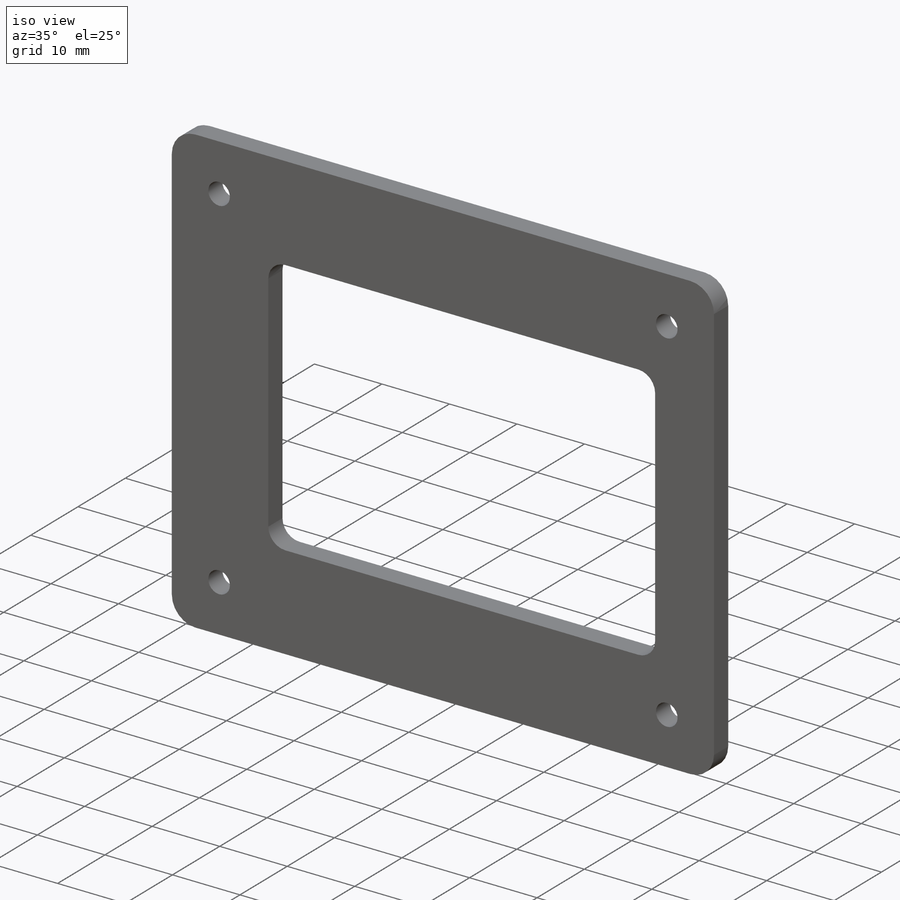
[diagram: iso view]
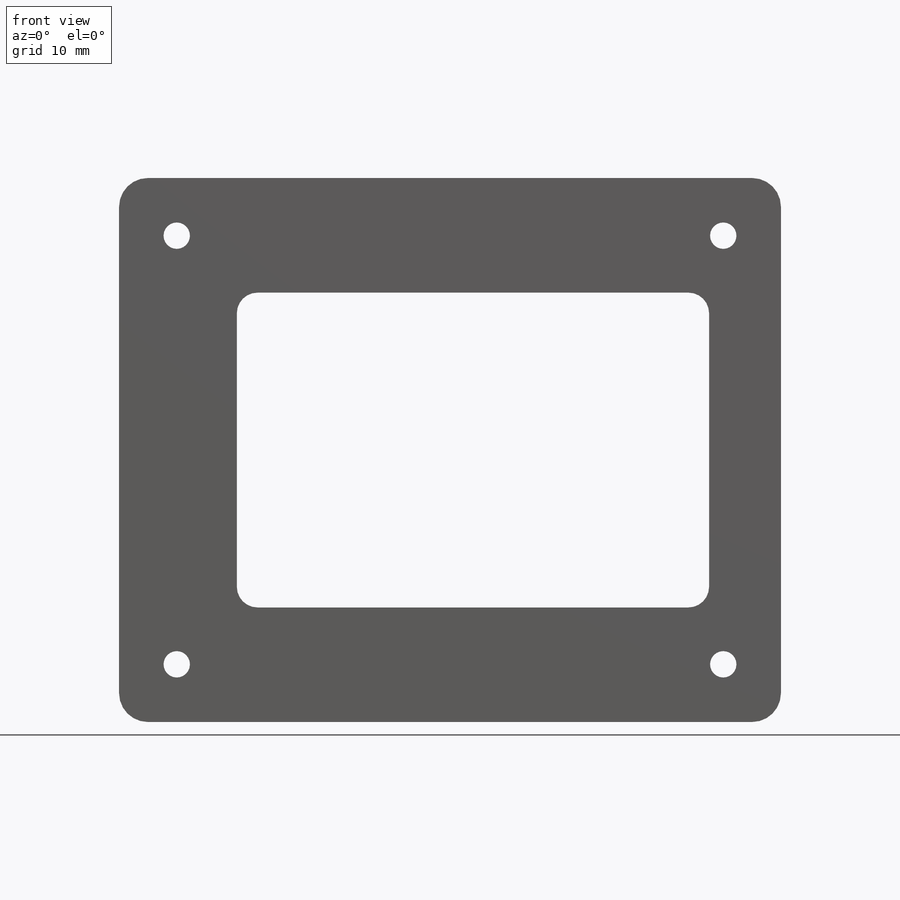
[diagram: front view]
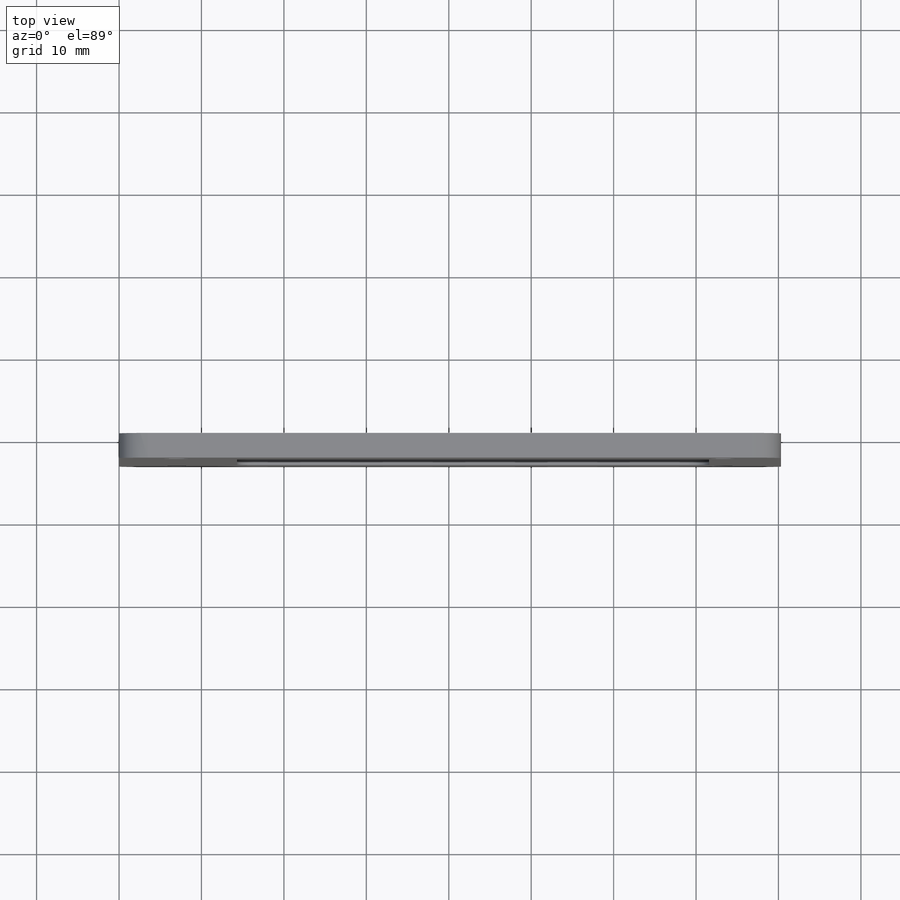
[diagram: top view]
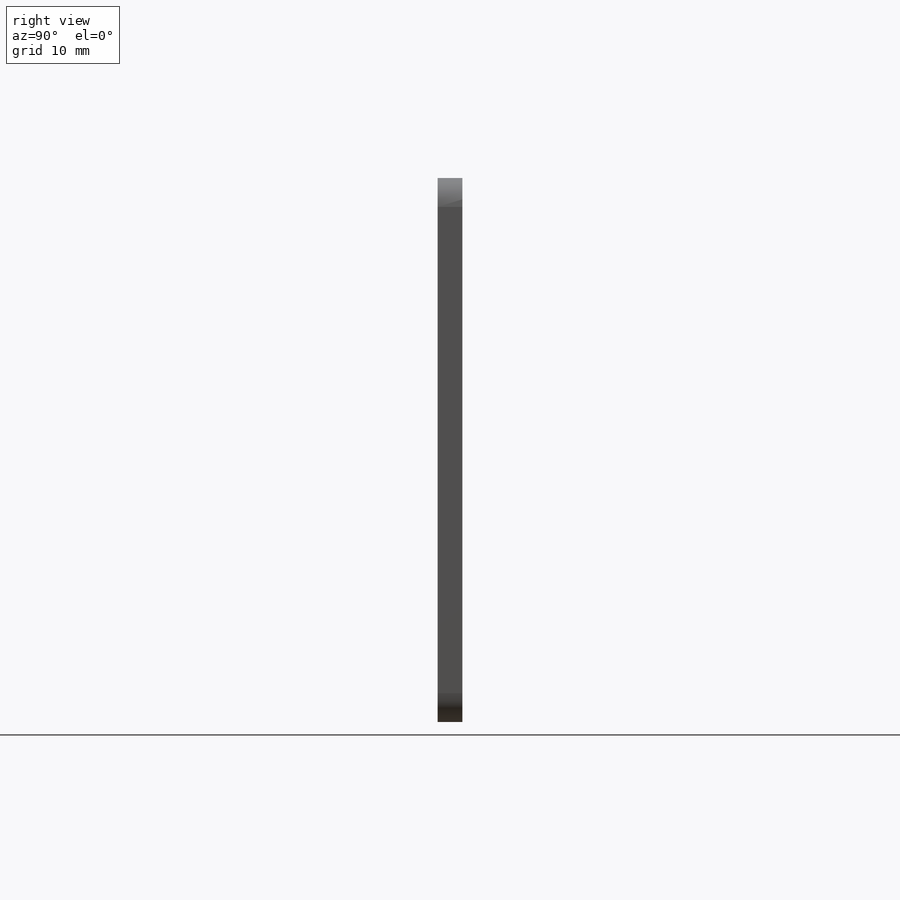
[diagram: right view]
SOLIDWORKS PART (.sldprt)
format: sldprt  version: not decoded by parser v0  size: 205,312 bytes
history: native  units: mm
features: sketch x4, fillet x2, material x1, extrude x1, hole x1, cut_extrude x1 (+12 scaffold rows collapsed)
feature tree (22):
  scaffold x12  (default folders/planes/origin — collapsed)
  material  "Acrylic (Medium-high impact)"
  sketch  "Sketch1"  dims[D1=80.3mm D2=66.0mm]
  extrude  "Boss-Extrude1"  Depth=3mm
  hole  "Ø3.2 (3.2) Diameter Hole1"  Diameter=3.2mm Depth=3mm
  sketch  "Sketch4"  dims[c1.D1=~65.796405mm c1.D2=~53.581039mm c1.D3=~65.796405mm c2.D1=7.0mm c2.D2=7.0mm c2.D3=7.0mm c2.D4=7.0mm]
  sketch  "Sketch3"  dims[hole-wizard template sketch: 60 standard entries collapsed; hole parameters kept: c18.Thru Hole Depth=3.0mm]
  sketch  "Sketch2"  dims[D1=57.29mm D2=38.19mm D3=14.29mm D4=13.9mm]
  cut_extrude  "Cut-Extrude1"  [1 undecoded]
  fillet  "Fillet1"  Radius=3.5mm
  fillet  "Fillet2"  Radius=2.5mm
decode coverage: 8 of 9 modeling features carry decoded parameters
note: ~ marks probable driven/reference dimensions
note: 1 parameter value undecoded
note: suppression state not decoded; provenance and decode notes live in map.json
